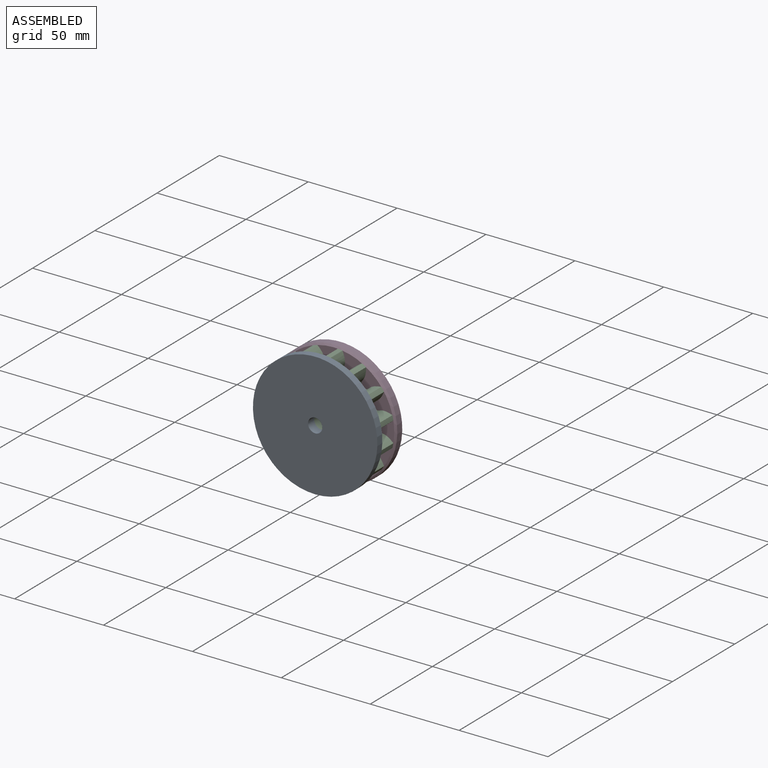
[diagram: assembled view]
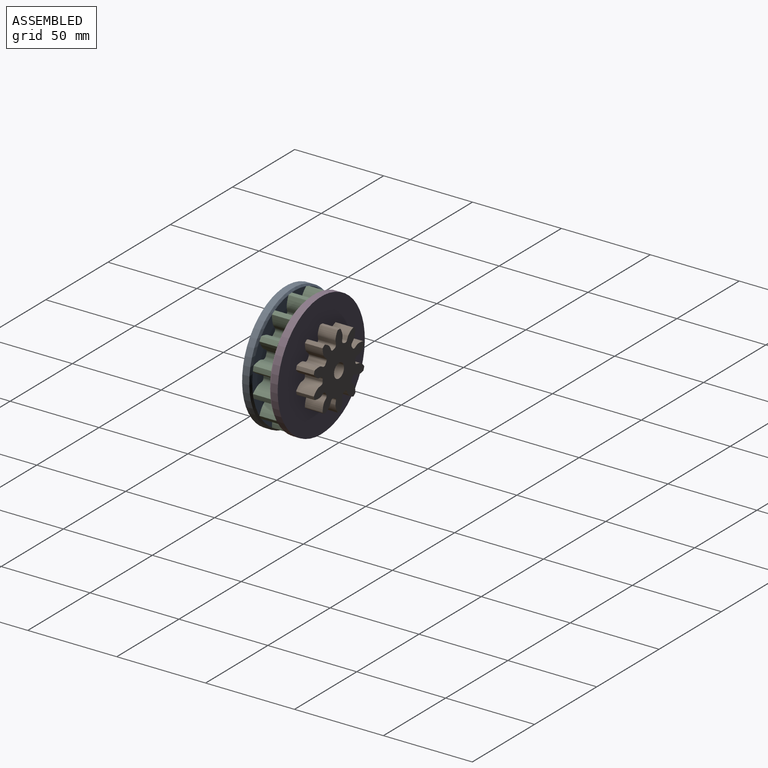
[diagram: assembled view, second angle]
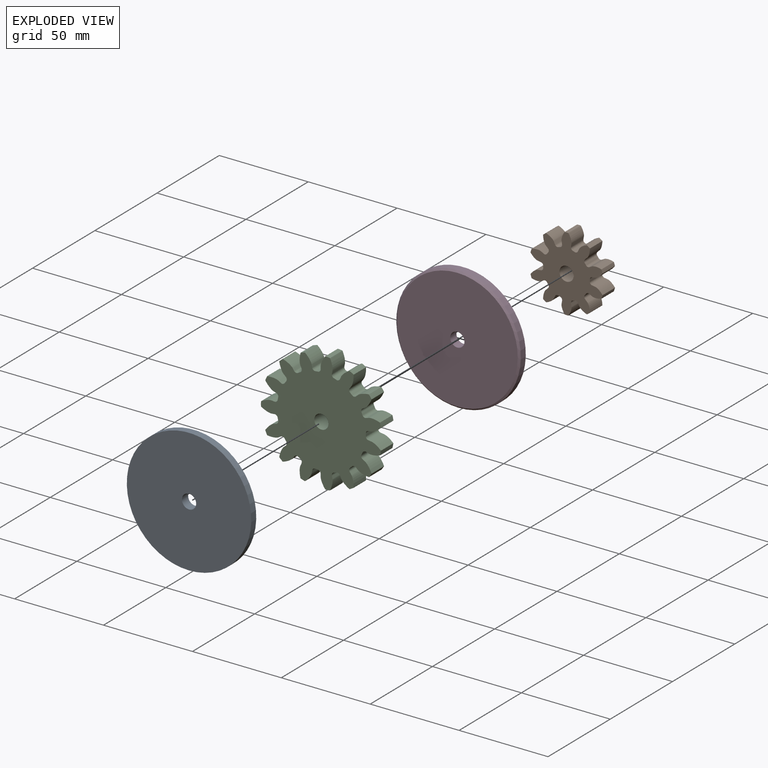
[diagram: exploded view]
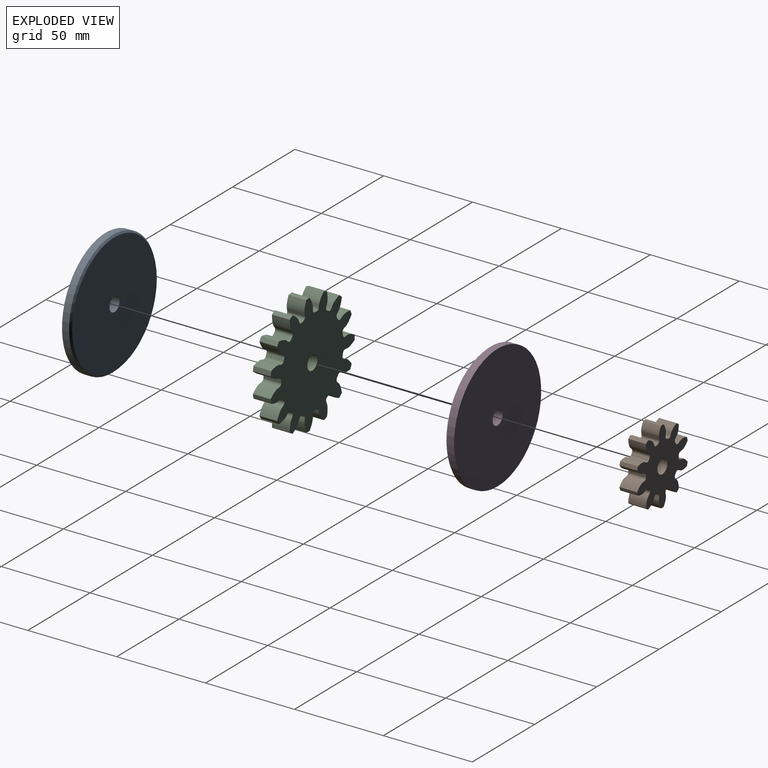
[diagram: exploded view, second angle]
ASSEMBLY  parts=4 mates=3
PART A: 5 faces, bbox 70x5x70 mm
  f0: cylinder r=4mm len=8mm, axis (0,1,0), area 125.7mm2, adj f2,f3
  f1: cylinder r=35mm len=70mm, axis (0,1,0), area 879.6mm2, adj f3,f4
  f2: plane 68x68mm, normal (0,-1,0), area 3581.4mm2, adj f0,f4
  f3: plane 70x70mm, normal (0,1,0), area 3798.2mm2, adj f0,f1
  f4: cone r=34mm half-angle=45deg, axis (0,1,0), area 306.6mm2, adj f1,f2
PART B: 63 faces, bbox 40.6x10x42.1 mm
  f0: cylinder r=21mm len=10mm, axis (0,1,0), area 20.5mm2, adj f9,f12,f53,f60
  f1: cylinder r=21mm len=10mm, axis (0,1,0), area 20.5mm2, adj f9,f12,f13,f55
  f2: cylinder r=21mm len=10mm, axis (0,1,0), area 20.5mm2, adj f9,f12,f43,f50
  f3: cylinder r=21mm len=10mm, axis (0,1,0), area 20.5mm2, adj f9,f12,f45,f58
  f4: cylinder r=21mm len=10mm, axis (0,1,0), area 20.5mm2, adj f9,f12,f33,f40
  f5: cylinder r=21mm len=10mm, axis (0,1,0), area 20.5mm2, adj f9,f12,f28,f35
  f6: cylinder r=21mm len=10mm, axis (0,1,0), area 20.5mm2, adj f9,f12,f23,f30
  f7: cylinder r=21mm len=10mm, axis (0,1,0), area 20.5mm2, adj f9,f12,f25,f48
  f8: cylinder r=21mm len=10mm, axis (0,1,0), area 20.5mm2, adj f9,f12,f20,f38
  f9: plane 42.07x40.62mm, normal (0,-1,0), area 870mm2, adj f0,f1,f2,f3,f4,f5,f6,f7
  f10: cylinder r=4mm len=10mm, axis (0,1,0), area 251.3mm2, adj f9,f12
  f11: cylinder r=21mm len=10mm, axis (0,1,0), area 20.5mm2, adj f9,f12,f15,f18
  f12: plane 42.07x40.62mm, normal (0,1,0), area 870mm2, adj f0,f1,f2,f3,f4,f5,f6,f7
  f13: extruded ~10x5.91mm, area 71mm2, adj f1,f9,f12,f16
  f14: cylinder r=13.12mm len=10mm, axis (0,1,0), area 11.2mm2, adj f9,f12,f16,f17
  f15: extruded ~10x5.91mm, area 71mm2, adj f9,f11,f12,f17
  f16: cylinder r=1.44mm len=10mm, axis (0,1,0), area 21.2mm2, adj f9,f12,f13,f14
  f17: cylinder r=1.44mm len=10mm, axis (0,1,0), area 21.2mm2, adj f9,f12,f14,f15
  f18: extruded ~10x6.81mm, area 71mm2, adj f9,f11,f12,f21
  f19: cylinder r=13.12mm len=10mm, axis (0,1,0), area 11.2mm2, adj f9,f12,f21,f22
  f20: extruded ~10x6.27mm, area 71mm2, adj f8,f9,f12,f22
  f21: cylinder r=1.44mm len=10mm, axis (0,1,0), area 21.2mm2, adj f9,f12,f18,f19
  f22: cylinder r=1.44mm len=10mm, axis (0,1,0), area 21.2mm2, adj f9,f12,f19,f20
  f23: extruded ~10x5.91mm, area 71mm2, adj f6,f9,f12,f26
  f24: cylinder r=13.12mm len=10mm, axis (0,1,0), area 11.2mm2, adj f9,f12,f26,f27
  f25: extruded ~10x5.91mm, area 71mm2, adj f7,f9,f12,f27
  f26: cylinder r=1.44mm len=10mm, axis (0,1,0), area 21.2mm2, adj f9,f12,f23,f24
  f27: cylinder r=1.44mm len=10mm, axis (0,1,0), area 21.2mm2, adj f9,f12,f24,f25
  f28: extruded ~10x6.27mm, area 71mm2, adj f5,f9,f12,f31
  f29: cylinder r=13.12mm len=10mm, axis (0,1,0), area 11.2mm2, adj f9,f12,f31,f32
  f30: extruded ~10x6.81mm, area 71mm2, adj f6,f9,f12,f32
  f31: cylinder r=1.44mm len=10mm, axis (0,1,0), area 21.2mm2, adj f9,f12,f28,f29
  f32: cylinder r=1.44mm len=10mm, axis (0,1,0), area 21.2mm2, adj f9,f12,f29,f30
  f33: extruded ~10x6.69mm, area 71mm2, adj f4,f9,f12,f36
  f34: cylinder r=13.12mm len=10mm, axis (0,1,0), area 11.2mm2, adj f9,f12,f36,f37
  f35: extruded ~10x5.11mm, area 71mm2, adj f5,f9,f12,f37
  f36: cylinder r=1.44mm len=10mm, axis (0,1,0), area 21.2mm2, adj f9,f12,f33,f34
  f37: cylinder r=1.44mm len=10mm, axis (0,1,0), area 21.2mm2, adj f9,f12,f34,f35
  f38: extruded ~10x5.11mm, area 71mm2, adj f8,f9,f12,f41
  f39: cylinder r=13.12mm len=10mm, axis (0,1,0), area 11.2mm2, adj f9,f12,f41,f42
  f40: extruded ~10x6.69mm, area 71mm2, adj f4,f9,f12,f42
  f41: cylinder r=1.44mm len=10mm, axis (0,1,0), area 21.2mm2, adj f9,f12,f38,f39
  f42: cylinder r=1.44mm len=10mm, axis (0,1,0), area 21.2mm2, adj f9,f12,f39,f40
  f43: extruded ~10x5.11mm, area 71mm2, adj f2,f9,f12,f46
  f44: cylinder r=13.12mm len=10mm, axis (0,1,0), area 11.2mm2, adj f9,f12,f46,f47
  f45: extruded ~10x6.69mm, area 71mm2, adj f3,f9,f12,f47
  f46: cylinder r=1.44mm len=10mm, axis (0,1,0), area 21.2mm2, adj f9,f12,f43,f44
  f47: cylinder r=1.44mm len=10mm, axis (0,1,0), area 21.2mm2, adj f9,f12,f44,f45
  f48: extruded ~10x6.81mm, area 71mm2, adj f7,f9,f12,f51
  f49: cylinder r=13.12mm len=10mm, axis (0,1,0), area 11.2mm2, adj f9,f12,f51,f52
  f50: extruded ~10x6.27mm, area 71mm2, adj f2,f9,f12,f52
  f51: cylinder r=1.44mm len=10mm, axis (0,1,0), area 21.2mm2, adj f9,f12,f48,f49
  f52: cylinder r=1.44mm len=10mm, axis (0,1,0), area 21.2mm2, adj f9,f12,f49,f50
  f53: extruded ~10x6.27mm, area 71mm2, adj f0,f9,f12,f56
  f54: cylinder r=13.12mm len=10mm, axis (0,1,0), area 11.2mm2, adj f9,f12,f56,f57
  f55: extruded ~10x6.81mm, area 71mm2, adj f1,f9,f12,f57
  f56: cylinder r=1.44mm len=10mm, axis (0,1,0), area 21.2mm2, adj f9,f12,f53,f54
  f57: cylinder r=1.44mm len=10mm, axis (0,1,0), area 21.2mm2, adj f9,f12,f54,f55
  f58: extruded ~10x6.69mm, area 71mm2, adj f3,f9,f12,f61
  f59: cylinder r=13.12mm len=10mm, axis (0,1,0), area 11.2mm2, adj f9,f12,f61,f62
  f60: extruded ~10x5.11mm, area 71mm2, adj f0,f9,f12,f62
  f61: cylinder r=1.44mm len=10mm, axis (0,1,0), area 21.2mm2, adj f9,f12,f58,f59
  f62: cylinder r=1.44mm len=10mm, axis (0,1,0), area 21.2mm2, adj f9,f12,f59,f60
PART C: 93 faces, bbox 67.6x10x68 mm
  f0: cylinder r=34mm len=10mm, axis (0,1,0), area 26.2mm2, adj f14,f17,f83,f90
  f1: cylinder r=34mm len=10mm, axis (0,1,0), area 26.2mm2, adj f14,f17,f73,f85
  f2: cylinder r=34mm len=10mm, axis (0,1,0), area 26.2mm2, adj f14,f17,f18,f80
  f3: cylinder r=34mm len=10mm, axis (0,1,0), area 26.2mm2, adj f14,f17,f75,f78
  f4: cylinder r=34mm len=10mm, axis (0,1,0), area 26.2mm2, adj f14,f17,f63,f70
  f5: cylinder r=34mm len=10mm, axis (0,1,0), area 26.2mm2, adj f14,f17,f65,f88
  f6: cylinder r=34mm len=10mm, axis (0,1,0), area 26.2mm2, adj f14,f17,f60,f68
  f7: cylinder r=34mm len=10mm, axis (0,1,0), area 26.2mm2, adj f14,f17,f55,f58
  f8: cylinder r=34mm len=10mm, axis (0,1,0), area 26.2mm2, adj f14,f17,f38,f50
  f9: cylinder r=34mm len=10mm, axis (0,1,0), area 26.2mm2, adj f14,f17,f45,f48
  f10: cylinder r=34mm len=10mm, axis (0,1,0), area 26.2mm2, adj f14,f17,f33,f40
  f11: cylinder r=34mm len=10mm, axis (0,1,0), area 26.2mm2, adj f14,f17,f23,f35
  f12: cylinder r=34mm len=10mm, axis (0,1,0), area 26.2mm2, adj f14,f17,f30,f53
  f13: cylinder r=34mm len=10mm, axis (0,1,0), area 26.2mm2, adj f14,f17,f25,f28
  f14: plane 67.95x67.58mm, normal (0,-1,0), area 2695.3mm2, adj f0,f1,f2,f3,f4,f5,f6,f7
  f15: cylinder r=4mm len=10mm, axis (0,1,0), area 251.3mm2, adj f14,f17
  f16: cylinder r=34mm len=10mm, axis (0,1,0), area 26.2mm2, adj f14,f17,f20,f43
  f17: plane 67.95x67.58mm, normal (0,1,0), area 2695.3mm2, adj f0,f1,f2,f3,f4,f5,f6,f7
  f18: extruded ~10x7.02mm, area 80.2mm2, adj f2,f14,f17,f21
  f19: cylinder r=25mm len=10mm, axis (0,1,0), area 14.1mm2, adj f14,f17,f21,f22
  f20: extruded ~10x7.02mm, area 80.2mm2, adj f14,f16,f17,f22
  f21: cylinder r=1.64mm len=10mm, axis (0,1,0), area 24.8mm2, adj f14,f17,f18,f19
  f22: cylinder r=1.64mm len=10mm, axis (0,1,0), area 24.8mm2, adj f14,f17,f19,f20
  f23: extruded ~10x7.78mm, area 80.2mm2, adj f11,f14,f17,f26
  f24: cylinder r=25mm len=10mm, axis (0,1,0), area 14.1mm2, adj f14,f17,f26,f27
  f25: extruded ~10x6.46mm, area 80.2mm2, adj f13,f14,f17,f27
  f26: cylinder r=1.64mm len=10mm, axis (0,1,0), area 24.8mm2, adj f14,f17,f23,f24
  f27: cylinder r=1.64mm len=10mm, axis (0,1,0), area 24.8mm2, adj f14,f17,f24,f25
  f28: extruded ~10x6.88mm, area 80.2mm2, adj f13,f14,f17,f31
  f29: cylinder r=25mm len=10mm, axis (0,1,0), area 14.1mm2, adj f14,f17,f31,f32
  f30: extruded ~10x7.68mm, area 80.2mm2, adj f12,f14,f17,f32
  f31: cylinder r=1.64mm len=10mm, axis (0,1,0), area 24.8mm2, adj f14,f17,f28,f29
  f32: cylinder r=1.64mm len=10mm, axis (0,1,0), area 24.8mm2, adj f14,f17,f29,f30
  f33: extruded ~10x7.34mm, area 80.2mm2, adj f10,f14,f17,f36
  f34: cylinder r=25mm len=10mm, axis (0,1,0), area 14.1mm2, adj f14,f17,f36,f37
  f35: extruded ~10x6.63mm, area 80.2mm2, adj f11,f14,f17,f37
  f36: cylinder r=1.64mm len=10mm, axis (0,1,0), area 24.8mm2, adj f14,f17,f33,f34
  f37: cylinder r=1.64mm len=10mm, axis (0,1,0), area 24.8mm2, adj f14,f17,f34,f35
  f38: extruded ~10x5.63mm, area 80.2mm2, adj f8,f14,f17,f41
  f39: cylinder r=25mm len=10mm, axis (0,1,0), area 14.1mm2, adj f14,f17,f41,f42
  f40: extruded ~10x7.73mm, area 80.2mm2, adj f10,f14,f17,f42
  f41: cylinder r=1.64mm len=10mm, axis (0,1,0), area 24.8mm2, adj f14,f17,f38,f39
  f42: cylinder r=1.64mm len=10mm, axis (0,1,0), area 24.8mm2, adj f14,f17,f39,f40
  f43: extruded ~10x7.8mm, area 80.2mm2, adj f14,f16,f17,f46
  f44: cylinder r=25mm len=10mm, axis (0,1,0), area 14.1mm2, adj f14,f17,f46,f47
  f45: extruded ~10x5.96mm, area 80.2mm2, adj f9,f14,f17,f47
  f46: cylinder r=1.64mm len=10mm, axis (0,1,0), area 24.8mm2, adj f14,f17,f43,f44
  f47: cylinder r=1.64mm len=10mm, axis (0,1,0), area 24.8mm2, adj f14,f17,f44,f45
  f48: extruded ~10x7.23mm, area 80.2mm2, adj f9,f14,f17,f51
  f49: cylinder r=25mm len=10mm, axis (0,1,0), area 14.1mm2, adj f14,f17,f51,f52
  f50: extruded ~10x7.49mm, area 80.2mm2, adj f8,f14,f17,f52
  f51: cylinder r=1.64mm len=10mm, axis (0,1,0), area 24.8mm2, adj f14,f17,f48,f49
  f52: cylinder r=1.64mm len=10mm, axis (0,1,0), area 24.8mm2, adj f14,f17,f49,f50
  f53: extruded ~10x6.16mm, area 80.2mm2, adj f12,f14,f17,f56
  f54: cylinder r=25mm len=10mm, axis (0,1,0), area 14.1mm2, adj f14,f17,f56,f57
  f55: extruded ~10x7.57mm, area 80.2mm2, adj f7,f14,f17,f57
  f56: cylinder r=1.64mm len=10mm, axis (0,1,0), area 24.8mm2, adj f14,f17,f53,f54
  f57: cylinder r=1.64mm len=10mm, axis (0,1,0), area 24.8mm2, adj f14,f17,f54,f55
  f58: extruded ~10x7.57mm, area 80.2mm2, adj f7,f14,f17,f61
  f59: cylinder r=25mm len=10mm, axis (0,1,0), area 14.1mm2, adj f14,f17,f61,f62
  f60: extruded ~10x6.16mm, area 80.2mm2, adj f6,f14,f17,f62
  f61: cylinder r=1.64mm len=10mm, axis (0,1,0), area 24.8mm2, adj f14,f17,f58,f59
  f62: cylinder r=1.64mm len=10mm, axis (0,1,0), area 24.8mm2, adj f14,f17,f59,f60
  f63: extruded ~10x6.46mm, area 80.2mm2, adj f4,f14,f17,f66
  f64: cylinder r=25mm len=10mm, axis (0,1,0), area 14.1mm2, adj f14,f17,f66,f67
  f65: extruded ~10x7.78mm, area 80.2mm2, adj f5,f14,f17,f67
  f66: cylinder r=1.64mm len=10mm, axis (0,1,0), area 24.8mm2, adj f14,f17,f63,f64
  f67: cylinder r=1.64mm len=10mm, axis (0,1,0), area 24.8mm2, adj f14,f17,f64,f65
  f68: extruded ~10x7.68mm, area 80.2mm2, adj f6,f14,f17,f71
  f69: cylinder r=25mm len=10mm, axis (0,1,0), area 14.1mm2, adj f14,f17,f71,f72
  f70: extruded ~10x6.88mm, area 80.2mm2, adj f4,f14,f17,f72
  f71: cylinder r=1.64mm len=10mm, axis (0,1,0), area 24.8mm2, adj f14,f17,f68,f69
  f72: cylinder r=1.64mm len=10mm, axis (0,1,0), area 24.8mm2, adj f14,f17,f69,f70
  f73: extruded ~10x7.49mm, area 80.2mm2, adj f1,f14,f17,f76
  f74: cylinder r=25mm len=10mm, axis (0,1,0), area 14.1mm2, adj f14,f17,f76,f77
  f75: extruded ~10x7.23mm, area 80.2mm2, adj f3,f14,f17,f77
  f76: cylinder r=1.64mm len=10mm, axis (0,1,0), area 24.8mm2, adj f14,f17,f73,f74
  f77: cylinder r=1.64mm len=10mm, axis (0,1,0), area 24.8mm2, adj f14,f17,f74,f75
  f78: extruded ~10x5.96mm, area 80.2mm2, adj f3,f14,f17,f81
  f79: cylinder r=25mm len=10mm, axis (0,1,0), area 14.1mm2, adj f14,f17,f81,f82
  f80: extruded ~10x7.8mm, area 80.2mm2, adj f2,f14,f17,f82
  f81: cylinder r=1.64mm len=10mm, axis (0,1,0), area 24.8mm2, adj f14,f17,f78,f79
  f82: cylinder r=1.64mm len=10mm, axis (0,1,0), area 24.8mm2, adj f14,f17,f79,f80
  f83: extruded ~10x7.73mm, area 80.2mm2, adj f0,f14,f17,f86
  f84: cylinder r=25mm len=10mm, axis (0,1,0), area 14.1mm2, adj f14,f17,f86,f87
  f85: extruded ~10x5.63mm, area 80.2mm2, adj f1,f14,f17,f87
  f86: cylinder r=1.64mm len=10mm, axis (0,1,0), area 24.8mm2, adj f14,f17,f83,f84
  f87: cylinder r=1.64mm len=10mm, axis (0,1,0), area 24.8mm2, adj f14,f17,f84,f85
  f88: extruded ~10x6.63mm, area 80.2mm2, adj f5,f14,f17,f91
  f89: cylinder r=25mm len=10mm, axis (0,1,0), area 14.1mm2, adj f14,f17,f91,f92
  f90: extruded ~10x7.34mm, area 80.2mm2, adj f0,f14,f17,f92
  f91: cylinder r=1.64mm len=10mm, axis (0,1,0), area 24.8mm2, adj f14,f17,f88,f89
  f92: cylinder r=1.64mm len=10mm, axis (0,1,0), area 24.8mm2, adj f14,f17,f89,f90
PART D: same geometry as A
PLACE A rot(axis=(0,0,1),180deg) t=(0,-30,0)mm
PLACE B at identity
PLACE C t=(0,-15,0)mm
PLACE D t=(0,-10,0)mm
MATE fastened D.f1 <-> B.f0  axis (0,1,0) through (0,-10,0)mm
MATE fastened C.f0 <-> A.f0  axis (0,-1,0) through (0,-25,0)mm
MATE fastened D.f0 <-> C.f0  axis (0,-1,0) through (0,-15,0)mm
